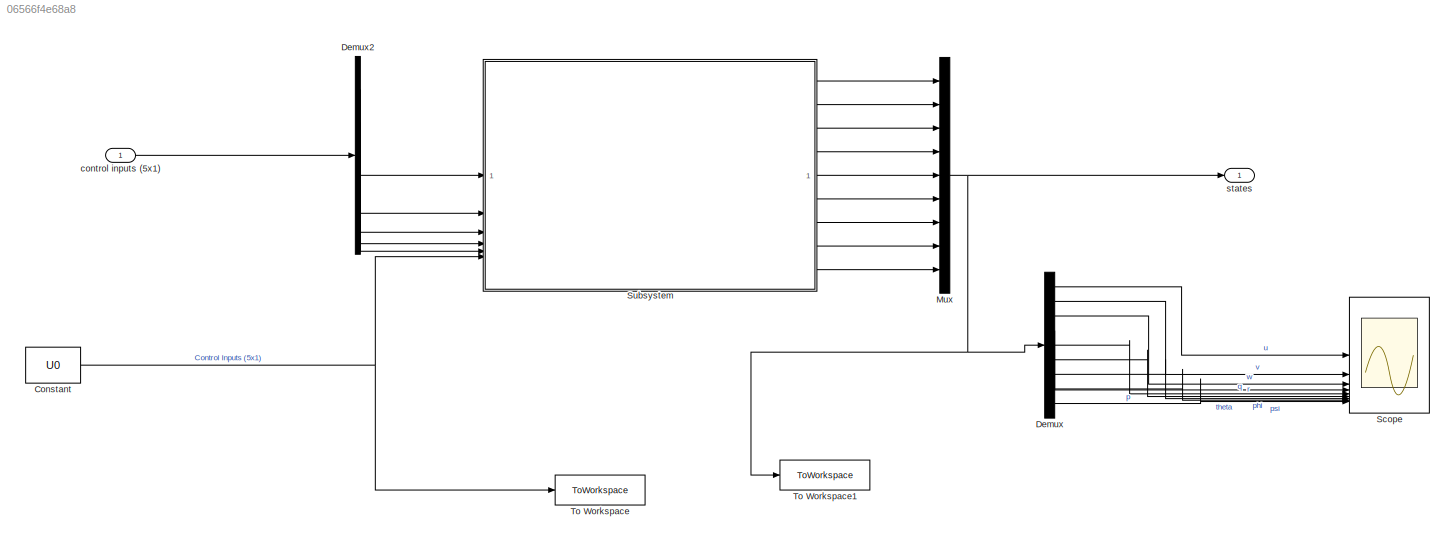
MODEL slx_06566f4e68a8
KIND model
CONFIG AbsTol = auto
CONFIG EnableMultiTasking = off
CONFIG FixedStep = auto
CONFIG MaxStep = auto
CONFIG MinStep = auto
CONFIG RelTol = 1e-3
CONFIG SampleTimeConstraint = Unconstrained
CONFIG SolverName = VariableStepAuto
CONFIG StartTime = 0.0
CONFIG StopTime = TF
BLOCK [Constant] Constant
  Value = U0
BLOCK [Demux] Demux
  Outputs = 9
BLOCK [Demux] Demux2
  Outputs = 5
BLOCK [Mux] Mux
  DisplayOption = bar
  Inputs = 9
BLOCK [Scope] Scope
  Floating = off
  NumInputPorts = 12
  ScopeSpecificationString = Simulink.scopes.TimeScopeBlockCfg('CurrentConfiguration', extmgr.ConfigurationSet(extmgr.Configuration('Core','General UI',true),extmgr.Configuration('Core','Source UI',true),extmgr.Configuration('Sources','WiredSimulink',true),extmgr.Configuration('Visuals','Time Domain',true,'SerializedDisplays',{struct('MinYLimReal','77.20688','MaxYLimReal','142.3661','YLabelReal','','MinYLimMag','77.20688','Ma...<+7051ch>
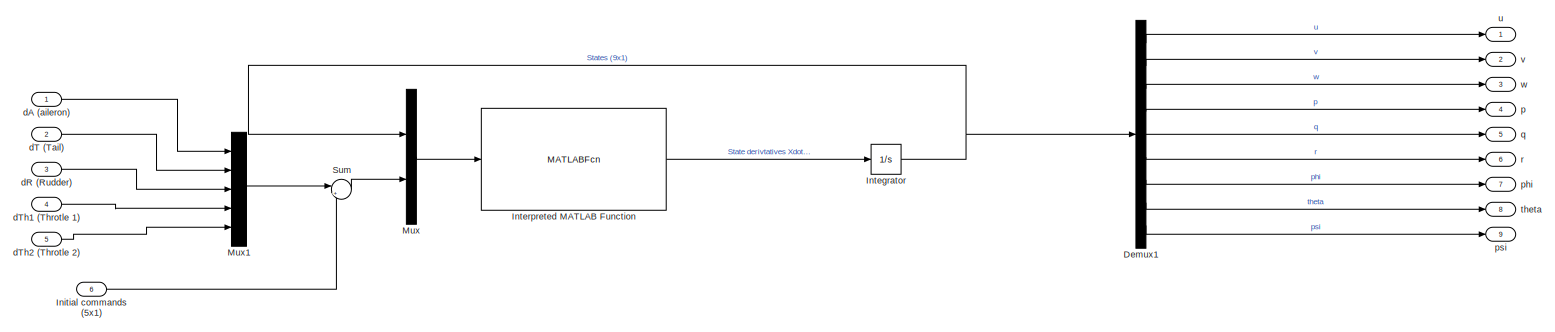
[diagram: Subsystem - part 1/1, most of the canvas]
BLOCK [SubSystem] Subsystem
BLOCK [Demux] Subsystem/Demux1
  Outputs = 9
BLOCK [Inport] Subsystem/Initial commands (5x1)
  Port = 6
BLOCK [Integrator] Subsystem/Integrator
  InitialCondition = X0
BLOCK [MATLABFcn] Subsystem/Interpreted MATLAB Function
  MATLABFcn = RCAM_model(u(1:9),u(10:14))
BLOCK [Mux] Subsystem/Mux
  DisplayOption = bar
  Inputs = 2
BLOCK [Mux] Subsystem/Mux1
  DisplayOption = bar
  Inputs = 5
BLOCK [Sum] Subsystem/Sum
  Inputs = |++
BLOCK [Inport] Subsystem/dA (aileron)
BLOCK [Inport] Subsystem/dR (Rudder)
  Port = 3
BLOCK [Inport] Subsystem/dT (Tail)
  Port = 2
BLOCK [Inport] Subsystem/dTh1 (Throtle 1)
  Port = 4
BLOCK [Inport] Subsystem/dTh2 (Throtle 2)
  Port = 5
BLOCK [Outport] Subsystem/p
  Port = 4
BLOCK [Outport] Subsystem/phi
  Port = 7
BLOCK [Outport] Subsystem/psi
  Port = 9
BLOCK [Outport] Subsystem/q
  Port = 5
BLOCK [Outport] Subsystem/r
  Port = 6
BLOCK [Outport] Subsystem/theta
  Port = 8
BLOCK [Outport] Subsystem/u
BLOCK [Outport] Subsystem/v
  Port = 2
BLOCK [Outport] Subsystem/w
  Port = 3
BLOCK [ToWorkspace] To Workspace
  FixptAsFi = on
  MaxDataPoints = inf
  SampleTime = -1
  SaveFormat = Timeseries
  VariableName = simU
BLOCK [ToWorkspace] To Workspace1
  FixptAsFi = on
  MaxDataPoints = inf
  SampleTime = -1
  SaveFormat = Timeseries
  VariableName = simX
BLOCK [Inport] control inputs (5x1)
BLOCK [Outport] states
NET Constant:1 -> Subsystem:6, To Workspace:1
LINE Demux2:1 -> Subsystem:1
LINE Demux2:2 -> Subsystem:2
LINE Demux2:3 -> Subsystem:3
LINE Demux2:4 -> Subsystem:4
LINE Demux2:5 -> Subsystem:5
LINE Demux:1 -> Scope:1
LINE Demux:2 -> Scope:2
LINE Demux:3 -> Scope:3
LINE Demux:4 -> Scope:4
LINE Demux:5 -> Scope:5
LINE Demux:6 -> Scope:6
LINE Demux:7 -> Scope:7
LINE Demux:8 -> Scope:8
LINE Demux:9 -> Scope:9
NET Mux:1 -> Demux:1, To Workspace1:1, states:1
LINE Subsystem/Demux1:1 -> Subsystem/u:1
LINE Subsystem/Demux1:2 -> Subsystem/v:1
LINE Subsystem/Demux1:3 -> Subsystem/w:1
LINE Subsystem/Demux1:4 -> Subsystem/p:1
LINE Subsystem/Demux1:5 -> Subsystem/q:1
LINE Subsystem/Demux1:6 -> Subsystem/r:1
LINE Subsystem/Demux1:7 -> Subsystem/phi:1
LINE Subsystem/Demux1:8 -> Subsystem/theta:1
LINE Subsystem/Demux1:9 -> Subsystem/psi:1
LINE Subsystem/Initial commands (5x1):1 -> Subsystem/Sum:2
NET Subsystem/Integrator:1 -> Subsystem/Demux1:1, Subsystem/Mux:1
LINE Subsystem/Interpreted MATLAB Function:1 -> Subsystem/Integrator:1
LINE Subsystem/Mux1:1 -> Subsystem/Sum:1
LINE Subsystem/Mux:1 -> Subsystem/Interpreted MATLAB Function:1
LINE Subsystem/Sum:1 -> Subsystem/Mux:2
LINE Subsystem/dA (aileron):1 -> Subsystem/Mux1:1
LINE Subsystem/dR (Rudder):1 -> Subsystem/Mux1:3
LINE Subsystem/dT (Tail):1 -> Subsystem/Mux1:2
LINE Subsystem/dTh1 (Throtle 1):1 -> Subsystem/Mux1:4
LINE Subsystem/dTh2 (Throtle 2):1 -> Subsystem/Mux1:5
LINE Subsystem:1 -> Mux:1
LINE Subsystem:2 -> Mux:2
LINE Subsystem:3 -> Mux:3
LINE Subsystem:4 -> Mux:4
LINE Subsystem:5 -> Mux:5
LINE Subsystem:6 -> Mux:6
LINE Subsystem:7 -> Mux:7
LINE Subsystem:8 -> Mux:8
LINE Subsystem:9 -> Mux:9
LINE control inputs (5x1):1 -> Demux2:1
note: NET lines group one-source signal fan-out (src -> all destinations, sorted); 1:1 wires keep LINE
